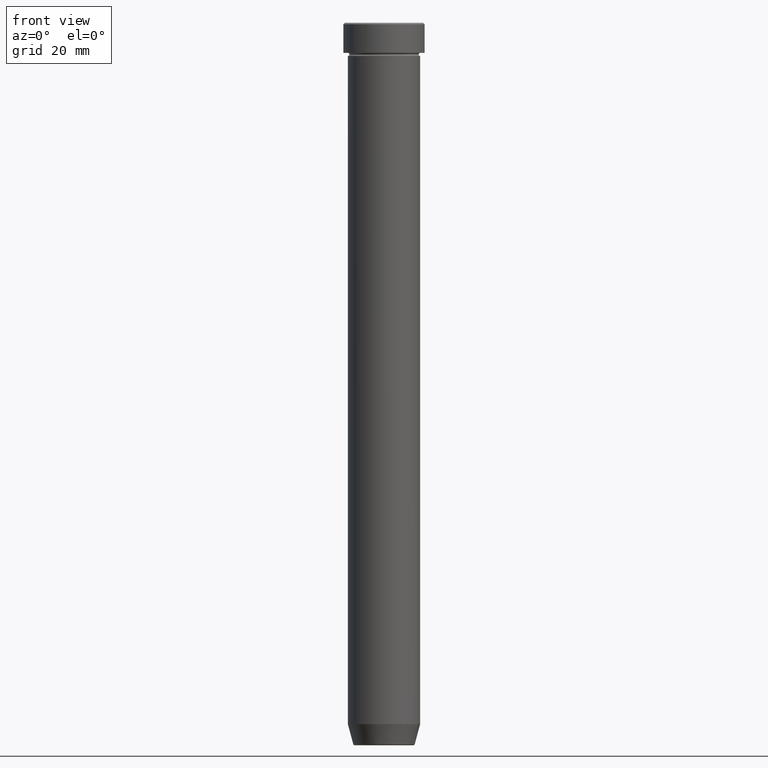
[diagram: clean part render]
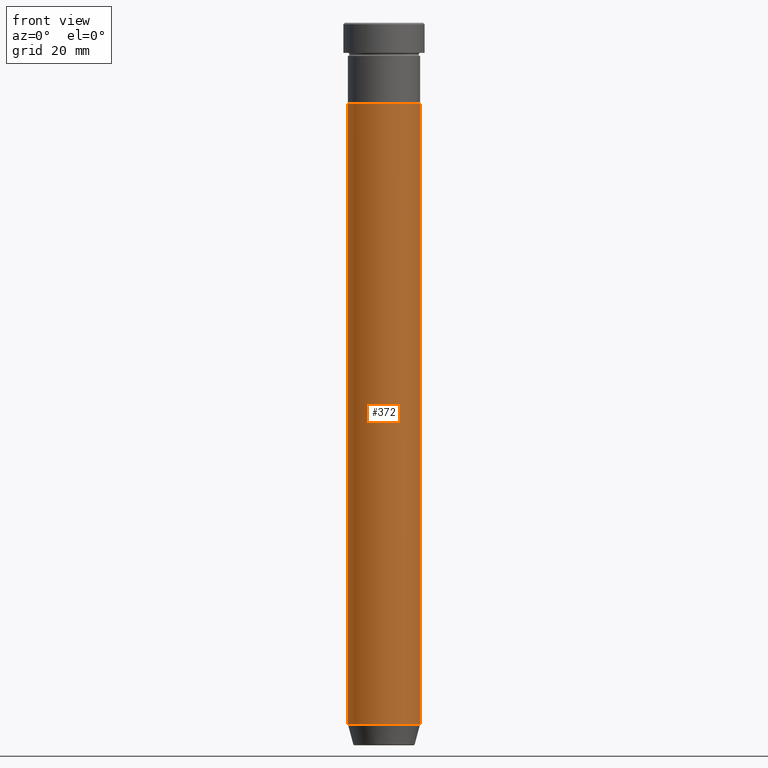
[diagram: same view with one face highlighted and labeled with its STEP entity id]
A machine part, front view. The second image highlights one B-rep face of the part: STEP entity #372.
In plain terms, the highlighted cylindrical surface (edge-blend (fillet) strip) has radius 12 mm, axis along (-0, -0, 1).
Its self-contained STEP definition (entity closure, byte-faithful):
#48 = DIRECTION ( 'NONE',  ( 1.000000000000000000, 0.000000000000000000, 0.000000000000000000 ) ) ;
#56 = CARTESIAN_POINT ( 'NONE',  ( 0.000000000000000000, 0.000000000000000000, -27.00000000000000000 ) ) ;
#70 = CARTESIAN_POINT ( 'NONE',  ( 0.000000000000000000, 0.000000000000000000, -232.9999999999999716 ) ) ;
#74 = DIRECTION ( 'NONE',  ( 1.000000000000000000, 0.000000000000000000, 0.000000000000000000 ) ) ;
#104 = VERTEX_POINT ( 'NONE', #461 ) ;
#108 = LINE ( 'NONE', #209, #547 ) ;
#118 = VECTOR ( 'NONE', #477, 1000.000000000000000 ) ;
#127 = DIRECTION ( 'NONE',  ( -0.000000000000000000, -0.000000000000000000, 1.000000000000000000 ) ) ;
#135 = VERTEX_POINT ( 'NONE', #185 ) ;
#148 = DIRECTION ( 'NONE',  ( -0.000000000000000000, -0.000000000000000000, 1.000000000000000000 ) ) ;
#162 = EDGE_LOOP ( 'NONE', ( #536, #216, #343, #201 ) ) ;
#185 = CARTESIAN_POINT ( 'NONE',  ( -12.00000000000000000, 1.469576158976823947E-15, -27.00000000000000000 ) ) ;
#201 = ORIENTED_EDGE ( 'NONE', *, *, #575, .F. ) ;
#209 = CARTESIAN_POINT ( 'NONE',  ( 12.00000000000000000, 0.000000000000000000, 0.000000000000000000 ) ) ;
#215 = AXIS2_PLACEMENT_3D ( 'NONE', #542, #127, #74 ) ;
#216 = ORIENTED_EDGE ( 'NONE', *, *, #345, .T. ) ;
#228 = EDGE_CURVE ( 'NONE', #245, #135, #563, .T. ) ;
#245 = VERTEX_POINT ( 'NONE', #470 ) ;
#256 = DIRECTION ( 'NONE',  ( -0.000000000000000000, -0.000000000000000000, 1.000000000000000000 ) ) ;
#294 = DIRECTION ( 'NONE',  ( -0.000000000000000000, -0.000000000000000000, 1.000000000000000000 ) ) ;
#304 = AXIS2_PLACEMENT_3D ( 'NONE', #56, #148, #48 ) ;
#307 = VERTEX_POINT ( 'NONE', #333 ) ;
#308 = EDGE_CURVE ( 'NONE', #104, #307, #108, .T. ) ;
#310 = AXIS2_PLACEMENT_3D ( 'NONE', #70, #256, #393 ) ;
#333 = CARTESIAN_POINT ( 'NONE',  ( 12.00000000000000000, 0.000000000000000000, -27.00000000000000000 ) ) ;
#343 = ORIENTED_EDGE ( 'NONE', *, *, #308, .T. ) ;
#345 = EDGE_CURVE ( 'NONE', #245, #104, #578, .T. ) ;
#372 = ADVANCED_FACE ( 'NONE', ( #439 ), #395, .T. ) ;
#377 = CIRCLE ( 'NONE', #304, 12.00000000000000000 ) ;
#390 = CARTESIAN_POINT ( 'NONE',  ( -12.00000000000000000, 1.469576158976823947E-15, 0.000000000000000000 ) ) ;
#393 = DIRECTION ( 'NONE',  ( 1.000000000000000000, 0.000000000000000000, 0.000000000000000000 ) ) ;
#395 = CYLINDRICAL_SURFACE ( 'NONE', #215, 12.00000000000000000 ) ;
#439 = FACE_OUTER_BOUND ( 'NONE', #162, .T. ) ;
#461 = CARTESIAN_POINT ( 'NONE',  ( 12.00000000000000000, 0.000000000000000000, -232.9999999999999716 ) ) ;
#470 = CARTESIAN_POINT ( 'NONE',  ( -12.00000000000000000, 1.469576158976823947E-15, -232.9999999999999716 ) ) ;
#477 = DIRECTION ( 'NONE',  ( -0.000000000000000000, -0.000000000000000000, 1.000000000000000000 ) ) ;
#536 = ORIENTED_EDGE ( 'NONE', *, *, #228, .F. ) ;
#542 = CARTESIAN_POINT ( 'NONE',  ( 0.000000000000000000, 0.000000000000000000, 0.000000000000000000 ) ) ;
#547 = VECTOR ( 'NONE', #294, 1000.000000000000000 ) ;
#563 = LINE ( 'NONE', #390, #118 ) ;
#575 = EDGE_CURVE ( 'NONE', #135, #307, #377, .T. ) ;
#578 = CIRCLE ( 'NONE', #310, 12.00000000000000000 ) ;